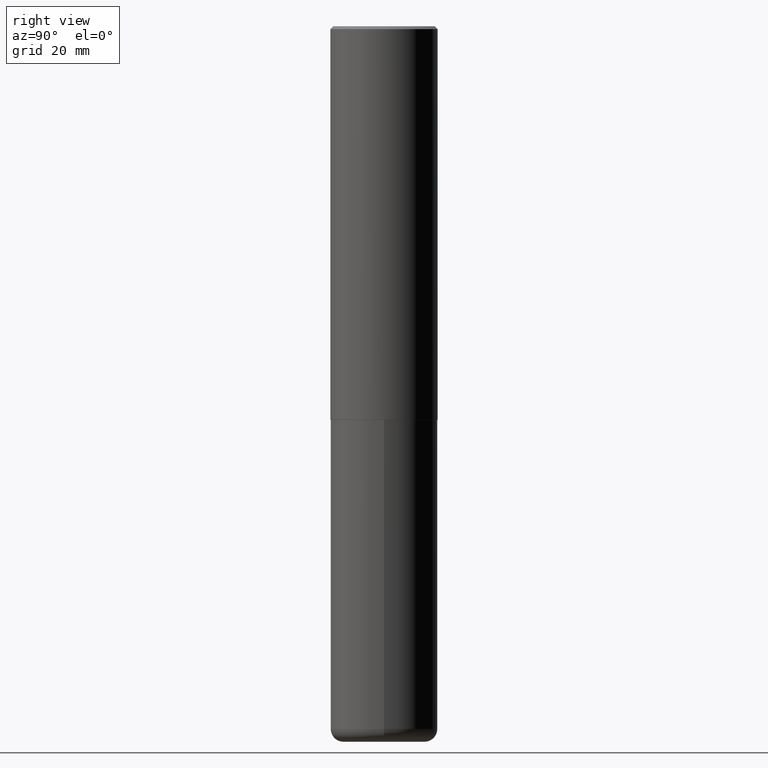
[diagram: clean part render]
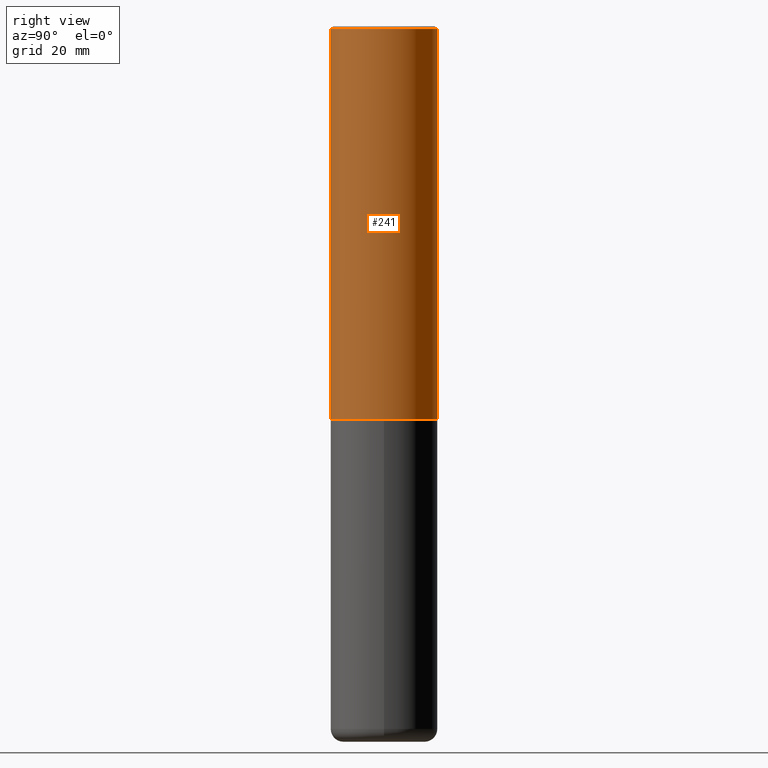
[diagram: same view with one face highlighted and labeled with its STEP entity id]
A machine part, right view. The second image highlights one B-rep face of the part: STEP entity #241.
In plain terms, the highlighted cylindrical surface (partial cylindrical patch) has radius 9.525 mm, axis along (-0, 0, 1).
Its self-contained STEP definition (entity closure, byte-faithful):
#6 = CARTESIAN_POINT ( 'NONE',  ( 0.000000000000000000, 0.000000000000000000, 0.000000000000000000 ) ) ;
#20 = ORIENTED_EDGE ( 'NONE', *, *, #137, .F. ) ;
#49 = CARTESIAN_POINT ( 'NONE',  ( -2.572686749164323547E-15, -0.3750000000000001110, -0.01999999999999877570 ) ) ;
#64 = LINE ( 'NONE', #322, #168 ) ;
#77 = FACE_OUTER_BOUND ( 'NONE', #125, .T. ) ;
#79 = CARTESIAN_POINT ( 'NONE',  ( 2.664535259100411196E-15, 0.3749999999999907296, -2.749000000000000998 ) ) ;
#89 = CARTESIAN_POINT ( 'NONE',  ( 2.664535259100376880E-15, 0.3750000000000002220, -1.308998548422625521E-15 ) ) ;
#91 = VERTEX_POINT ( 'NONE', #227 ) ;
#102 = CARTESIAN_POINT ( 'NONE',  ( -2.618611004132284935E-15, -0.3750000000000099920, -2.748999999999999222 ) ) ;
#105 = AXIS2_PLACEMENT_3D ( 'NONE', #106, #369, #171 ) ;
#106 = CARTESIAN_POINT ( 'NONE',  ( 6.724165036897648492E-29, -9.595832025636787455E-15, -2.749000000000000110 ) ) ;
#107 = EDGE_CURVE ( 'NONE', #381, #91, #295, .T. ) ;
#117 = VECTOR ( 'NONE', #118, 39.37007874015748143 ) ;
#118 = DIRECTION ( 'NONE',  ( -2.446040391741596606E-29, 3.490662795793665557E-15, 1.000000000000000000 ) ) ;
#125 = EDGE_LOOP ( 'NONE', ( #286, #300, #151, #20 ) ) ;
#129 = CARTESIAN_POINT ( 'NONE',  ( 4.892080783483214581E-31, -6.981325591587361238E-17, -0.02000000000000008715 ) ) ;
#137 = EDGE_CURVE ( 'NONE', #312, #381, #64, .T. ) ;
#151 = ORIENTED_EDGE ( 'NONE', *, *, #107, .F. ) ;
#155 = LINE ( 'NONE', #89, #117 ) ;
#168 = VECTOR ( 'NONE', #358, 39.37007874015748143 ) ;
#171 = DIRECTION ( 'NONE',  ( -6.982962677686265922E-15, -1.000000000000000000, 2.913971193241877611E-15 ) ) ;
#196 = DIRECTION ( 'NONE',  ( -6.982962677686265922E-15, -1.000000000000000000, 3.494488891895536035E-15 ) ) ;
#207 = EDGE_CURVE ( 'NONE', #312, #285, #335, .T. ) ;
#208 = DIRECTION ( 'NONE',  ( -6.982962677686266711E-15, -1.000000000000000000, 3.490662795793665951E-15 ) ) ;
#227 = CARTESIAN_POINT ( 'NONE',  ( 2.618611004132350411E-15, 0.3749999999999999445, -0.02000000000000139513 ) ) ;
#237 = CYLINDRICAL_SURFACE ( 'NONE', #374, 0.3750000000000002220 ) ;
#241 = ADVANCED_FACE ( 'NONE', ( #77 ), #237, .T. ) ;
#285 = VERTEX_POINT ( 'NONE', #79 ) ;
#286 = ORIENTED_EDGE ( 'NONE', *, *, #207, .T. ) ;
#295 = CIRCLE ( 'NONE', #351, 0.3750000000000000555 ) ;
#299 = DIRECTION ( 'NONE',  ( -2.446040391741596606E-29, 3.490662795793665557E-15, 1.000000000000000000 ) ) ;
#300 = ORIENTED_EDGE ( 'NONE', *, *, #383, .T. ) ;
#312 = VERTEX_POINT ( 'NONE', #102 ) ;
#321 = DIRECTION ( 'NONE',  ( -2.446040391741596606E-29, 3.490662795793665557E-15, 1.000000000000000000 ) ) ;
#322 = CARTESIAN_POINT ( 'NONE',  ( -2.618611004132351594E-15, -0.3750000000000002220, 1.308998548422625521E-15 ) ) ;
#335 = CIRCLE ( 'NONE', #105, 0.3750000000000003886 ) ;
#351 = AXIS2_PLACEMENT_3D ( 'NONE', #129, #321, #196 ) ;
#358 = DIRECTION ( 'NONE',  ( -2.446040391741596606E-29, 3.490662795793665557E-15, 1.000000000000000000 ) ) ;
#369 = DIRECTION ( 'NONE',  ( -2.446040391741596606E-29, 3.490662795793665557E-15, 1.000000000000000000 ) ) ;
#374 = AXIS2_PLACEMENT_3D ( 'NONE', #6, #299, #208 ) ;
#381 = VERTEX_POINT ( 'NONE', #49 ) ;
#383 = EDGE_CURVE ( 'NONE', #285, #91, #155, .T. ) ;